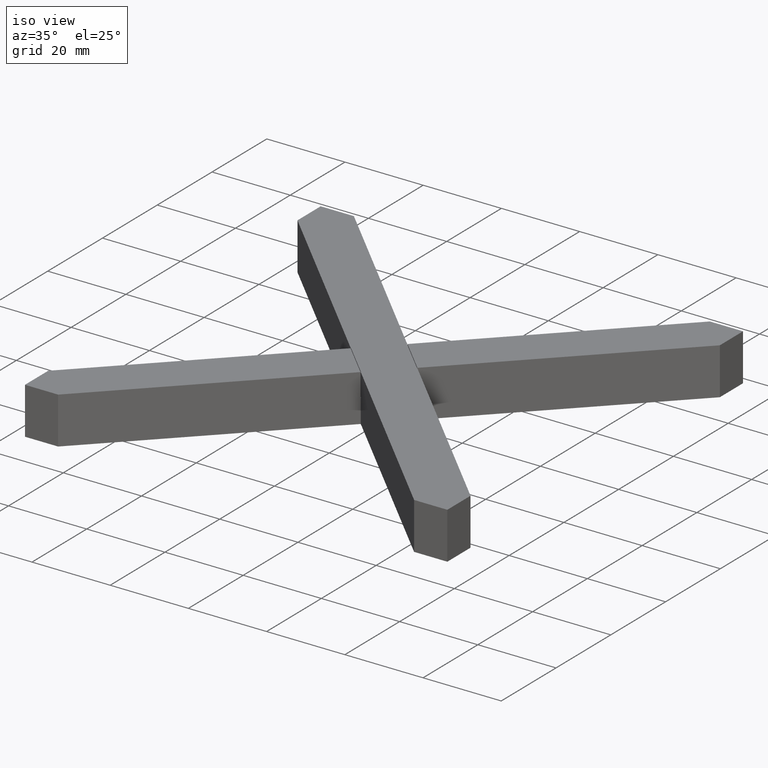
[diagram: clean part render]
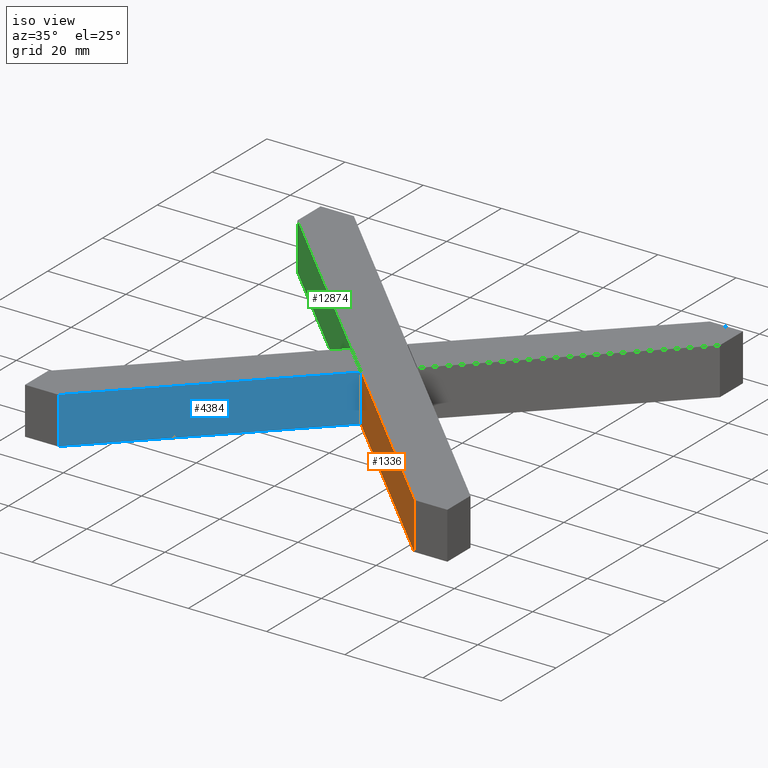
[diagram: same view with three faces highlighted in distinct colors, each labeled with its STEP entity id]
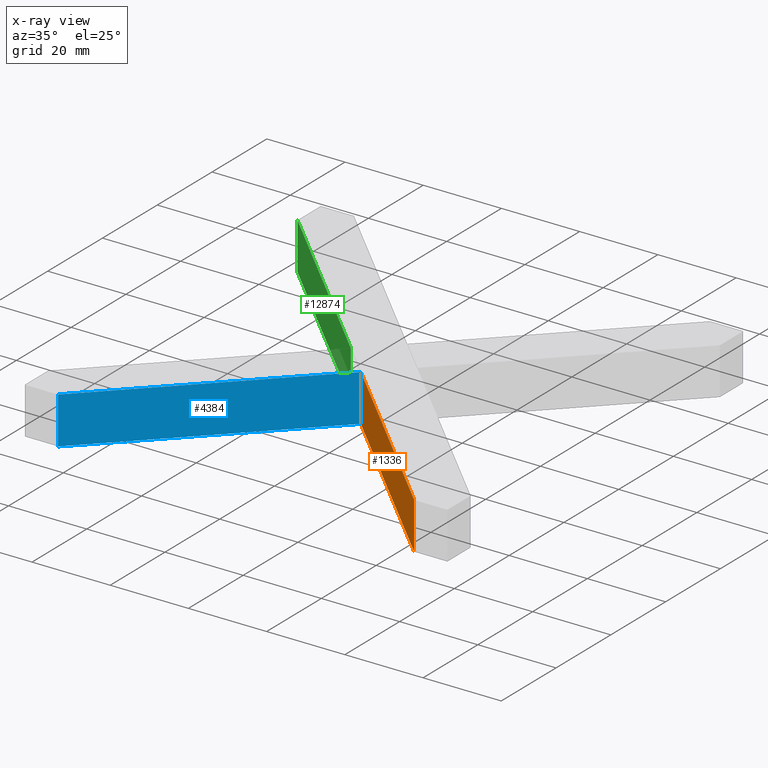
[diagram: x-ray of the same camera — body ghosted, the three highlighted faces saturated]
A machine part, iso view with three faces highlighted in distinct colors.
The next image is the same camera in x-ray (body ghosted, the three faces saturated) — at least one of them is partly hidden behind the body in this view.
Their STEP definitions:

[orange] entity #1336 — the highlighted planar face has unit normal (0.7071, 0.7071, -0).
#542 = AXIS2_PLACEMENT_3D ( 'NONE', #5498, #3270, #13387 ) ;
#1021 = CARTESIAN_POINT ( 'NONE',  ( -1.564418524095811927E-15, -8.485281374238574870, 12.00000000000000000 ) ) ;
#1077 = DIRECTION ( 'NONE',  ( -0.000000000000000000, -0.000000000000000000, -1.000000000000000000 ) ) ;
#1111 = LINE ( 'NONE', #9318, #1284 ) ;
#1202 = LINE ( 'NONE', #1021, #12920 ) ;
#1284 = VECTOR ( 'NONE', #9274, 1000.000000000000114 ) ;
#1336 = ADVANCED_FACE ( 'NONE', ( #5378 ), #6612, .F. ) ;
#1537 = CARTESIAN_POINT ( 'NONE',  ( 45.51471862576143224, -54.00000000000000711, 12.00000000000000000 ) ) ;
#1565 = EDGE_CURVE ( 'NONE', #12781, #7983, #1111, .T. ) ;
#1666 = CARTESIAN_POINT ( 'NONE',  ( -1.564418524095811927E-15, -8.485281374238574870, 0.000000000000000000 ) ) ;
#2278 = CARTESIAN_POINT ( 'NONE',  ( 45.51471862576143224, -54.00000000000000711, 0.000000000000000000 ) ) ;
#2459 = DIRECTION ( 'NONE',  ( -0.000000000000000000, -0.000000000000000000, -1.000000000000000000 ) ) ;
#2533 = VERTEX_POINT ( 'NONE', #1537 ) ;
#3018 = VERTEX_POINT ( 'NONE', #13361 ) ;
#3270 = DIRECTION ( 'NONE',  ( 0.7071067811865475727, 0.7071067811865475727, -0.000000000000000000 ) ) ;
#3694 = DIRECTION ( 'NONE',  ( 0.7071067811865474617, -0.7071067811865474617, 0.000000000000000000 ) ) ;
#3881 = ORIENTED_EDGE ( 'NONE', *, *, #8472, .F. ) ;
#4257 = EDGE_CURVE ( 'NONE', #3018, #8685, #1202, .T. ) ;
#4500 = EDGE_CURVE ( 'NONE', #8685, #12781, #6729, .T. ) ;
#4712 = ORIENTED_EDGE ( 'NONE', *, *, #1565, .T. ) ;
#5220 = CARTESIAN_POINT ( 'NONE',  ( -1.833295651976454419E-14, -8.485281374238557106, 6.000000000000000000 ) ) ;
#5378 = FACE_OUTER_BOUND ( 'NONE', #9038, .T. ) ;
#5498 = CARTESIAN_POINT ( 'NONE',  ( -1.564418524095811927E-15, -8.485281374238574870, 12.00000000000000000 ) ) ;
#5885 = ORIENTED_EDGE ( 'NONE', *, *, #8503, .F. ) ;
#6612 = PLANE ( 'NONE',  #542 ) ;
#6729 = LINE ( 'NONE', #10460, #12751 ) ;
#7175 = CARTESIAN_POINT ( 'NONE',  ( -1.564418524095811927E-15, -8.485281374238574870, 12.00000000000000000 ) ) ;
#7200 = LINE ( 'NONE', #10357, #12716 ) ;
#7983 = VERTEX_POINT ( 'NONE', #2278 ) ;
#8472 = EDGE_CURVE ( 'NONE', #2533, #7983, #7200, .T. ) ;
#8503 = EDGE_CURVE ( 'NONE', #3018, #2533, #13940, .T. ) ;
#8685 = VERTEX_POINT ( 'NONE', #5220 ) ;
#9038 = EDGE_LOOP ( 'NONE', ( #4712, #3881, #5885, #12787, #12074 ) ) ;
#9274 = DIRECTION ( 'NONE',  ( 0.7071067811865474617, -0.7071067811865474617, 0.000000000000000000 ) ) ;
#9318 = CARTESIAN_POINT ( 'NONE',  ( -1.564418524095811927E-15, -8.485281374238574870, 0.000000000000000000 ) ) ;
#9432 = DIRECTION ( 'NONE',  ( -0.000000000000000000, -0.000000000000000000, -1.000000000000000000 ) ) ;
#10357 = CARTESIAN_POINT ( 'NONE',  ( 45.51471862576143224, -54.00000000000000711, 12.00000000000000000 ) ) ;
#10460 = CARTESIAN_POINT ( 'NONE',  ( -1.564418524095811927E-15, -8.485281374238574870, 12.00000000000000000 ) ) ;
#12074 = ORIENTED_EDGE ( 'NONE', *, *, #4500, .T. ) ;
#12716 = VECTOR ( 'NONE', #2459, 1000.000000000000000 ) ;
#12751 = VECTOR ( 'NONE', #9432, 1000.000000000000000 ) ;
#12781 = VERTEX_POINT ( 'NONE', #1666 ) ;
#12787 = ORIENTED_EDGE ( 'NONE', *, *, #4257, .T. ) ;
#12877 = VECTOR ( 'NONE', #3694, 1000.000000000000114 ) ;
#12920 = VECTOR ( 'NONE', #1077, 1000.000000000000000 ) ;
#13361 = CARTESIAN_POINT ( 'NONE',  ( -1.801130859041544241E-14, -8.485281374238557106, 12.00000000000000000 ) ) ;
#13387 = DIRECTION ( 'NONE',  ( -0.7071067811865474617, 0.7071067811865474617, 0.000000000000000000 ) ) ;
#13940 = LINE ( 'NONE', #7175, #12877 ) ;

[blue] entity #4384 — the highlighted planar face has unit normal (-0.7071, 0.7071, 0).
#661 = ORIENTED_EDGE ( 'NONE', *, *, #11742, .F. ) ;
#1125 = DIRECTION ( 'NONE',  ( -0.7071067811865474617, -0.7071067811865476838, 0.000000000000000000 ) ) ;
#1555 = DIRECTION ( 'NONE',  ( -0.000000000000000000, -0.000000000000000000, -1.000000000000000000 ) ) ;
#1666 = CARTESIAN_POINT ( 'NONE',  ( -1.564418524095811927E-15, -8.485281374238574870, 0.000000000000000000 ) ) ;
#1683 = ORIENTED_EDGE ( 'NONE', *, *, #8961, .F. ) ;
#1982 = CARTESIAN_POINT ( 'NONE',  ( -0.03535533905934472310, -8.520636713297884413, 6.000000000000000000 ) ) ;
#2691 = VECTOR ( 'NONE', #9939, 1000.000000000000000 ) ;
#3417 = DIRECTION ( 'NONE',  ( -0.7071067811865476838, 0.7071067811865474617, 0.000000000000000000 ) ) ;
#3704 = CARTESIAN_POINT ( 'NONE',  ( -0.03535533905934472310, -8.520636713297884413, 12.00000000000000000 ) ) ;
#3978 = EDGE_CURVE ( 'NONE', #13712, #12781, #6552, .T. ) ;
#4170 = CARTESIAN_POINT ( 'NONE',  ( -0.03535533905934472310, -8.520636713297884413, 6.000000000000000000 ) ) ;
#4250 = CARTESIAN_POINT ( 'NONE',  ( -45.51471862576141802, -54.00000000000000711, 0.000000000000000000 ) ) ;
#4369 = AXIS2_PLACEMENT_3D ( 'NONE', #10264, #3417, #1125 ) ;
#4384 = ADVANCED_FACE ( 'NONE', ( #11172 ), #8109, .F. ) ;
#4500 = EDGE_CURVE ( 'NONE', #8685, #12781, #6729, .T. ) ;
#4833 = CARTESIAN_POINT ( 'NONE',  ( -45.51471862576141802, -54.00000000000000711, 0.000000000000000000 ) ) ;
#5220 = CARTESIAN_POINT ( 'NONE',  ( -1.833295651976454419E-14, -8.485281374238557106, 6.000000000000000000 ) ) ;
#5339 = DIRECTION ( 'NONE',  ( 0.7071067811865474617, 0.7071067811865476838, 0.000000000000000000 ) ) ;
#5381 = LINE ( 'NONE', #11875, #12993 ) ;
#5497 = VERTEX_POINT ( 'NONE', #4170 ) ;
#5918 = LINE ( 'NONE', #10036, #13722 ) ;
#6552 = LINE ( 'NONE', #4250, #8304 ) ;
#6729 = LINE ( 'NONE', #10460, #12751 ) ;
#7553 = LINE ( 'NONE', #9137, #13419 ) ;
#8084 = DIRECTION ( 'NONE',  ( 0.7071067811865474617, 0.7071067811865476838, 0.000000000000000000 ) ) ;
#8109 = PLANE ( 'NONE',  #4369 ) ;
#8174 = ORIENTED_EDGE ( 'NONE', *, *, #13056, .T. ) ;
#8304 = VECTOR ( 'NONE', #5339, 1000.000000000000000 ) ;
#8685 = VERTEX_POINT ( 'NONE', #5220 ) ;
#8743 = ORIENTED_EDGE ( 'NONE', *, *, #3978, .T. ) ;
#8961 = EDGE_CURVE ( 'NONE', #11011, #11892, #7553, .T. ) ;
#9137 = CARTESIAN_POINT ( 'NONE',  ( -45.51471862576141802, -54.00000000000000711, 12.00000000000000000 ) ) ;
#9432 = DIRECTION ( 'NONE',  ( -0.000000000000000000, -0.000000000000000000, -1.000000000000000000 ) ) ;
#9881 = DIRECTION ( 'NONE',  ( 0.7071067811865556774, 0.7071067811865392461, 0.000000000000000000 ) ) ;
#9939 = DIRECTION ( 'NONE',  ( -0.000000000000000000, -0.000000000000000000, 1.000000000000000000 ) ) ;
#10036 = CARTESIAN_POINT ( 'NONE',  ( -0.03535533905934472310, -8.520636713297884413, 6.000000000000000000 ) ) ;
#10264 = CARTESIAN_POINT ( 'NONE',  ( -45.51471862576141802, -54.00000000000000711, 12.00000000000000000 ) ) ;
#10460 = CARTESIAN_POINT ( 'NONE',  ( -1.564418524095811927E-15, -8.485281374238574870, 12.00000000000000000 ) ) ;
#10575 = ORIENTED_EDGE ( 'NONE', *, *, #11916, .T. ) ;
#10595 = EDGE_LOOP ( 'NONE', ( #661, #8174, #1683, #10575, #8743, #12082 ) ) ;
#11011 = VERTEX_POINT ( 'NONE', #12376 ) ;
#11172 = FACE_OUTER_BOUND ( 'NONE', #10595, .T. ) ;
#11742 = EDGE_CURVE ( 'NONE', #5497, #8685, #5918, .T. ) ;
#11875 = CARTESIAN_POINT ( 'NONE',  ( -45.51471862576141802, -54.00000000000000711, 12.00000000000000000 ) ) ;
#11892 = VERTEX_POINT ( 'NONE', #3704 ) ;
#11916 = EDGE_CURVE ( 'NONE', #11011, #13712, #5381, .T. ) ;
#12082 = ORIENTED_EDGE ( 'NONE', *, *, #4500, .F. ) ;
#12376 = CARTESIAN_POINT ( 'NONE',  ( -45.51471862576141802, -54.00000000000000711, 12.00000000000000000 ) ) ;
#12751 = VECTOR ( 'NONE', #9432, 1000.000000000000000 ) ;
#12781 = VERTEX_POINT ( 'NONE', #1666 ) ;
#12993 = VECTOR ( 'NONE', #1555, 1000.000000000000000 ) ;
#13056 = EDGE_CURVE ( 'NONE', #5497, #11892, #13880, .T. ) ;
#13419 = VECTOR ( 'NONE', #8084, 1000.000000000000000 ) ;
#13712 = VERTEX_POINT ( 'NONE', #4833 ) ;
#13722 = VECTOR ( 'NONE', #9881, 1000.000000000000114 ) ;
#13880 = LINE ( 'NONE', #1982, #2691 ) ;

[green] entity #12874 — the highlighted planar face has unit normal (0.7071, 0.7071, -0).
#9 = VECTOR ( 'NONE', #13429, 1000.000000000000000 ) ;
#573 = CARTESIAN_POINT ( 'NONE',  ( -8.485281374238567764, -6.938893903907228378E-15, 0.000000000000000000 ) ) ;
#2066 = CARTESIAN_POINT ( 'NONE',  ( -53.99999999999999289, 45.51471862576142513, 0.000000000000000000 ) ) ;
#2708 = AXIS2_PLACEMENT_3D ( 'NONE', #3108, #5398, #13229 ) ;
#3108 = CARTESIAN_POINT ( 'NONE',  ( -53.99999999999999289, 45.51471862576142513, 12.00000000000000000 ) ) ;
#3439 = EDGE_LOOP ( 'NONE', ( #12229, #4060, #6341, #7996, #4431 ) ) ;
#3496 = LINE ( 'NONE', #5523, #9905 ) ;
#4060 = ORIENTED_EDGE ( 'NONE', *, *, #11799, .F. ) ;
#4144 = EDGE_CURVE ( 'NONE', #9285, #4398, #12044, .T. ) ;
#4392 = DIRECTION ( 'NONE',  ( -0.000000000000000000, -0.000000000000000000, -1.000000000000000000 ) ) ;
#4398 = VERTEX_POINT ( 'NONE', #11446 ) ;
#4431 = ORIENTED_EDGE ( 'NONE', *, *, #4639, .T. ) ;
#4544 = VERTEX_POINT ( 'NONE', #573 ) ;
#4639 = EDGE_CURVE ( 'NONE', #6003, #8183, #7777, .T. ) ;
#5149 = DIRECTION ( 'NONE',  ( -0.000000000000000000, -0.000000000000000000, -1.000000000000000000 ) ) ;
#5398 = DIRECTION ( 'NONE',  ( 0.7071067811865475727, 0.7071067811865474617, -0.000000000000000000 ) ) ;
#5523 = CARTESIAN_POINT ( 'NONE',  ( -53.99999999999999289, 45.51471862576142513, 12.00000000000000000 ) ) ;
#5911 = CARTESIAN_POINT ( 'NONE',  ( -53.99999999999999289, 45.51471862576142513, 0.000000000000000000 ) ) ;
#6003 = VERTEX_POINT ( 'NONE', #6884 ) ;
#6276 = VECTOR ( 'NONE', #4392, 1000.000000000000000 ) ;
#6341 = ORIENTED_EDGE ( 'NONE', *, *, #4144, .F. ) ;
#6468 = CARTESIAN_POINT ( 'NONE',  ( -8.485281374238573093, -2.378468515890075352E-15, 12.00000000000000000 ) ) ;
#6677 = DIRECTION ( 'NONE',  ( 0.7071067811865474617, -0.7071067811865475727, 0.000000000000000000 ) ) ;
#6884 = CARTESIAN_POINT ( 'NONE',  ( -53.99999999999999289, 45.51471862576142513, 12.00000000000000000 ) ) ;
#6893 = CARTESIAN_POINT ( 'NONE',  ( -8.485281374238567764, -6.938893903907228378E-15, 12.00000000000000000 ) ) ;
#7434 = VECTOR ( 'NONE', #5149, 1000.000000000000000 ) ;
#7496 = EDGE_CURVE ( 'NONE', #6003, #9285, #3496, .T. ) ;
#7777 = LINE ( 'NONE', #9575, #7434 ) ;
#7996 = ORIENTED_EDGE ( 'NONE', *, *, #7496, .F. ) ;
#8183 = VERTEX_POINT ( 'NONE', #5911 ) ;
#9285 = VERTEX_POINT ( 'NONE', #6468 ) ;
#9575 = CARTESIAN_POINT ( 'NONE',  ( -53.99999999999999289, 45.51471862576142513, 12.00000000000000000 ) ) ;
#9905 = VECTOR ( 'NONE', #6677, 1000.000000000000000 ) ;
#9985 = PLANE ( 'NONE',  #2708 ) ;
#11446 = CARTESIAN_POINT ( 'NONE',  ( -8.485281374238576646, -5.197394164352386881E-15, 6.000000000000000000 ) ) ;
#11799 = EDGE_CURVE ( 'NONE', #4398, #4544, #14065, .T. ) ;
#12044 = LINE ( 'NONE', #13718, #13637 ) ;
#12229 = ORIENTED_EDGE ( 'NONE', *, *, #13495, .T. ) ;
#12682 = DIRECTION ( 'NONE',  ( -0.000000000000000000, -0.000000000000000000, -1.000000000000000000 ) ) ;
#12821 = LINE ( 'NONE', #2066, #9 ) ;
#12874 = ADVANCED_FACE ( 'NONE', ( #13175 ), #9985, .F. ) ;
#13175 = FACE_OUTER_BOUND ( 'NONE', #3439, .T. ) ;
#13229 = DIRECTION ( 'NONE',  ( -0.7071067811865474617, 0.7071067811865475727, 0.000000000000000000 ) ) ;
#13429 = DIRECTION ( 'NONE',  ( 0.7071067811865474617, -0.7071067811865475727, 0.000000000000000000 ) ) ;
#13495 = EDGE_CURVE ( 'NONE', #8183, #4544, #12821, .T. ) ;
#13637 = VECTOR ( 'NONE', #12682, 1000.000000000000000 ) ;
#13718 = CARTESIAN_POINT ( 'NONE',  ( -8.485281374238567764, -6.938893903907228378E-15, 12.00000000000000000 ) ) ;
#14065 = LINE ( 'NONE', #6893, #6276 ) ;